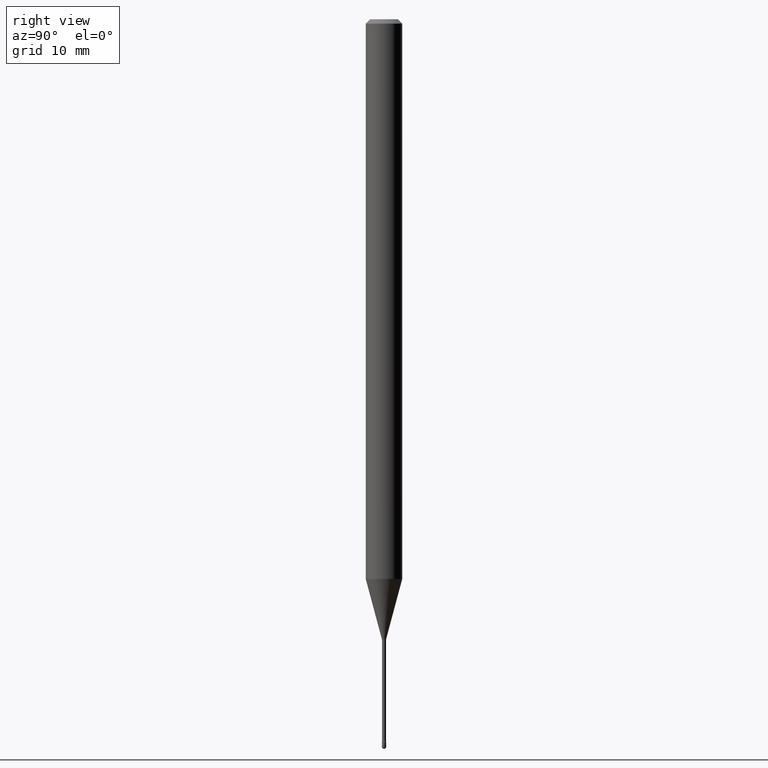
[diagram: clean part render]
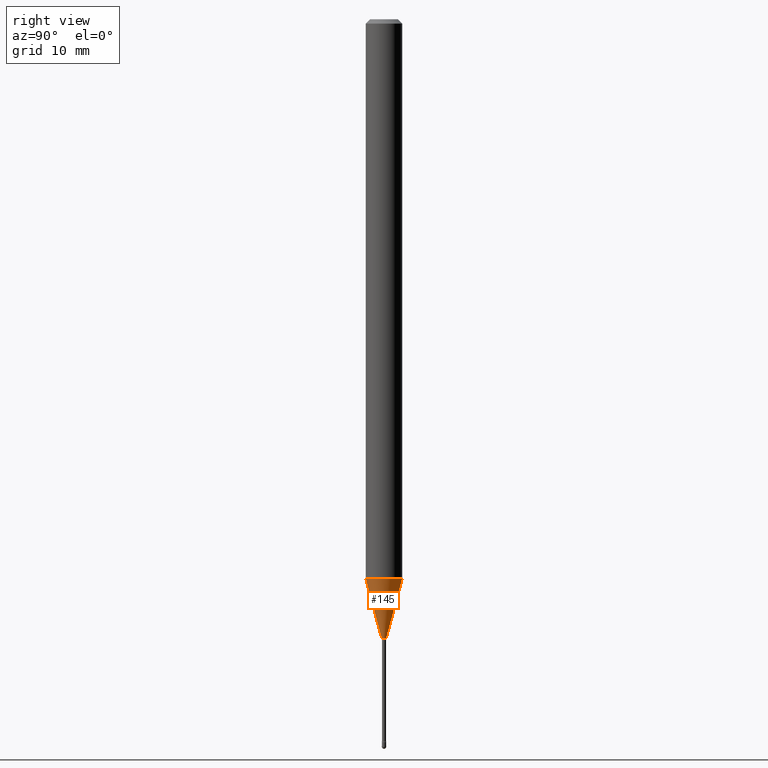
[diagram: same view with one face highlighted and labeled with its STEP entity id]
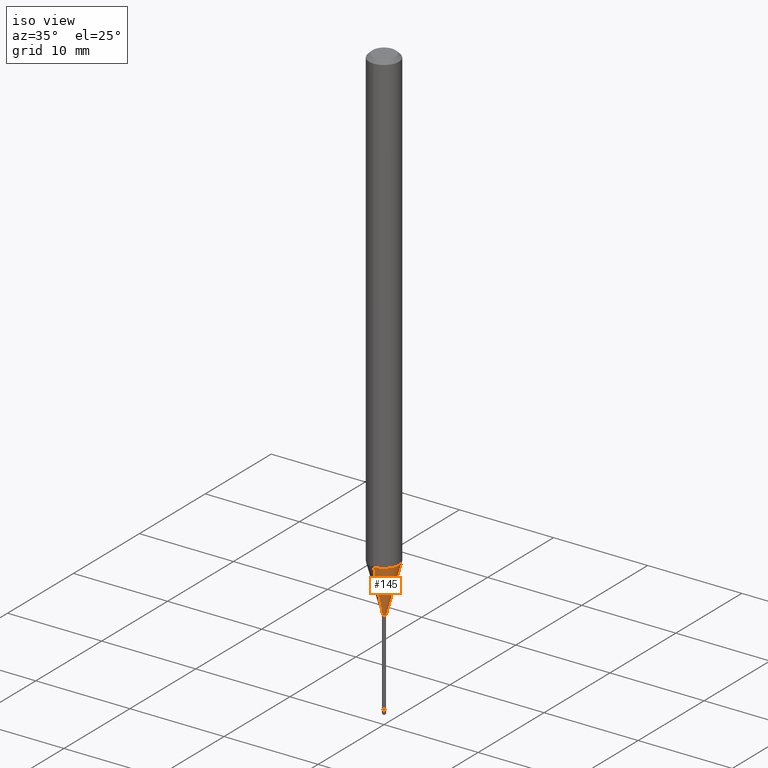
[diagram: same view with one face highlighted and labeled with its STEP entity id]
A machine part, right view. The second image highlights one B-rep face of the part: STEP entity #145.
A second angle (iso view) of the same face is appended — the face is thin or edge-on in the first view.
In plain terms, the highlighted conical surface has half-angle 15 deg.
Its self-contained STEP definition (entity closure, byte-faithful):
#16 = CARTESIAN_POINT ( 'NONE',  ( 5.372493636223851277E-17, 0.007561112605656562270, -2.123092501787273267 ) ) ;
#20 = AXIS2_PLACEMENT_3D ( 'NONE', #174, #520, #555 ) ;
#26 = VERTEX_POINT ( 'NONE', #444 ) ;
#69 = CARTESIAN_POINT ( 'NONE',  ( -5.279896712708277390E-17, -0.007561112605671388952, -2.123092501787273267 ) ) ;
#72 = CARTESIAN_POINT ( 'NONE',  ( 2.489070731061741995E-16, 0.007561112605656562270, -2.123092501787273267 ) ) ;
#97 = CARTESIAN_POINT ( 'NONE',  ( 5.191885643474223974E-29, -7.412839300822471210E-15, -2.123092501787273267 ) ) ;
#103 = EDGE_CURVE ( 'NONE', #436, #484, #461, .T. ) ;
#112 = VERTEX_POINT ( 'NONE', #445 ) ;
#143 = AXIS2_PLACEMENT_3D ( 'NONE', #251, #420, #523 ) ;
#145 = ADVANCED_FACE ( 'NONE', ( #388 ), #333, .T. ) ;
#171 = ORIENTED_EDGE ( 'NONE', *, *, #103, .T. ) ;
#174 = CARTESIAN_POINT ( 'NONE',  ( 5.191885643474223974E-29, -7.412839300822471210E-15, -2.123092501787273267 ) ) ;
#196 = EDGE_LOOP ( 'NONE', ( #171, #281, #416, #366 ) ) ;
#205 = VECTOR ( 'NONE', #293, 39.37007874015748854 ) ;
#224 = EDGE_CURVE ( 'NONE', #26, #112, #345, .T. ) ;
#251 = CARTESIAN_POINT ( 'NONE',  ( 4.690486475307307994E-29, -6.696954607973137123E-15, -1.918057782720306248 ) ) ;
#256 = EDGE_CURVE ( 'NONE', #436, #26, #547, .T. ) ;
#281 = ORIENTED_EDGE ( 'NONE', *, *, #390, .T. ) ;
#293 = DIRECTION ( 'NONE',  ( 1.839019923739597554E-15, 0.2588190451025245697, 0.9659258262890670910 ) ) ;
#294 = VECTOR ( 'NONE', #454, 39.37007874015748143 ) ;
#333 = CONICAL_SURFACE ( 'NONE', #20, 0.007561112605663975611, 0.2617993877991499074 ) ;
#345 = CIRCLE ( 'NONE', #143, 0.06250000000000000000 ) ;
#351 = DIRECTION ( 'NONE',  ( -2.445435438683695197E-29, 3.491529123004369972E-15, 1.000000000000000000 ) ) ;
#366 = ORIENTED_EDGE ( 'NONE', *, *, #256, .F. ) ;
#372 = CARTESIAN_POINT ( 'NONE',  ( -5.279896712708277390E-17, -0.007561112605671388952, -2.123092501787273267 ) ) ;
#388 = FACE_OUTER_BOUND ( 'NONE', #196, .T. ) ;
#390 = EDGE_CURVE ( 'NONE', #484, #112, #496, .T. ) ;
#416 = ORIENTED_EDGE ( 'NONE', *, *, #224, .F. ) ;
#420 = DIRECTION ( 'NONE',  ( -2.445435438683695197E-29, 3.491529123004369972E-15, 1.000000000000000000 ) ) ;
#436 = VERTEX_POINT ( 'NONE', #372 ) ;
#444 = CARTESIAN_POINT ( 'NONE',  ( -4.364351673553448308E-16, -0.06250000000000670297, -1.918057782720306026 ) ) ;
#445 = CARTESIAN_POINT ( 'NONE',  ( 4.440892098501093562E-16, 0.06249999999999330397, -1.918057782720306470 ) ) ;
#451 = AXIS2_PLACEMENT_3D ( 'NONE', #97, #351, #477 ) ;
#454 = DIRECTION ( 'NONE',  ( -1.807323732225327773E-15, -0.2588190451025178529, 0.9659258262890690894 ) ) ;
#461 = CIRCLE ( 'NONE', #451, 0.007561112605663975611 ) ;
#477 = DIRECTION ( 'NONE',  ( -6.982962677686265133E-15, -1.000000000000000000, 0.000000000000000000 ) ) ;
#484 = VERTEX_POINT ( 'NONE', #72 ) ;
#496 = LINE ( 'NONE', #16, #205 ) ;
#520 = DIRECTION ( 'NONE',  ( -2.445435438683695197E-29, 3.491529123004369972E-15, 1.000000000000000000 ) ) ;
#523 = DIRECTION ( 'NONE',  ( -6.982962677686265922E-15, -1.000000000000000000, 4.370956789862821150E-15 ) ) ;
#547 = LINE ( 'NONE', #69, #294 ) ;
#555 = DIRECTION ( 'NONE',  ( -6.982962677686265133E-15, -1.000000000000000000, 0.000000000000000000 ) ) ;